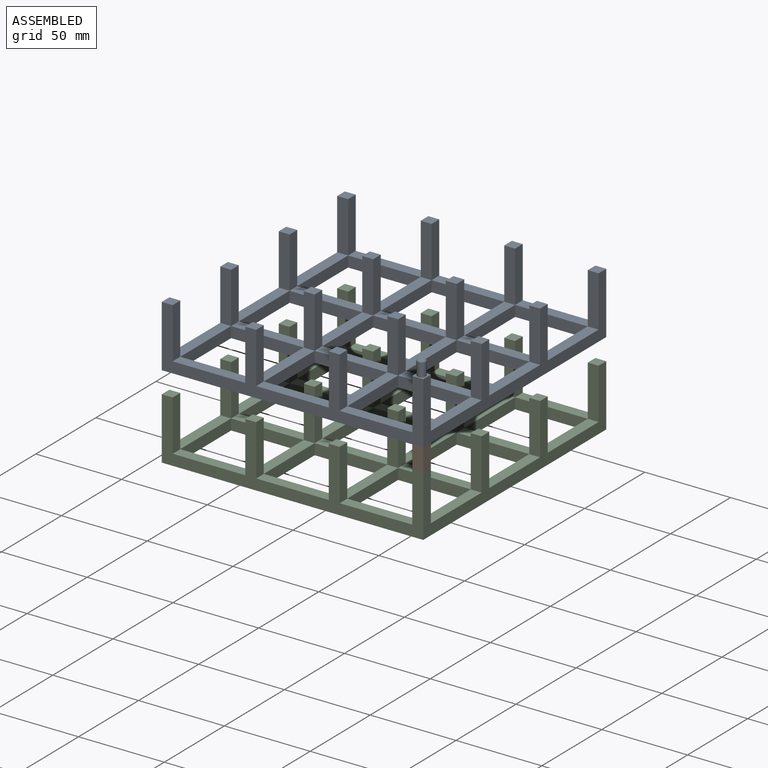
[diagram: assembled view]
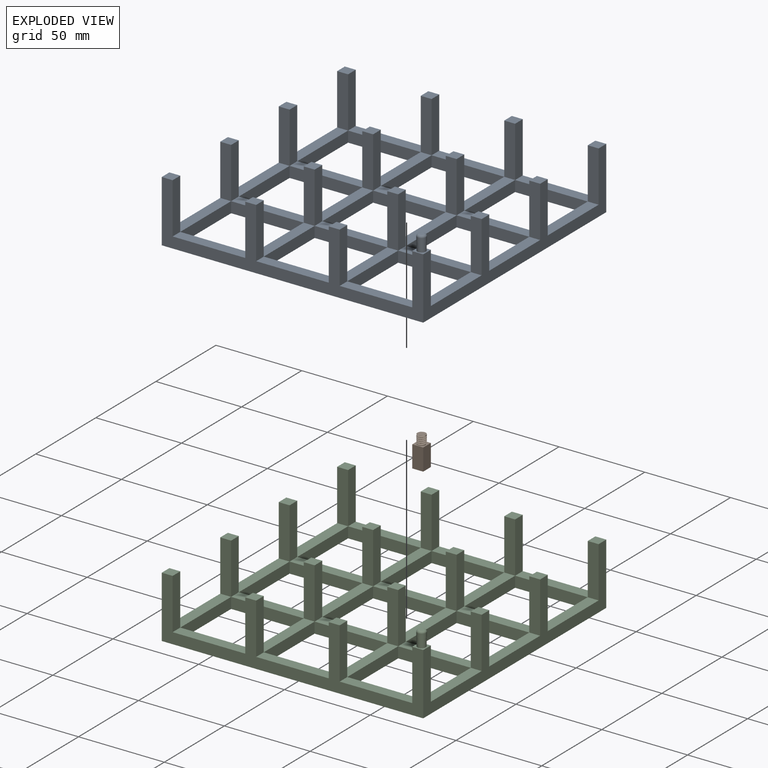
[diagram: exploded view]
GUIDED TOUR — MATED ASSEMBLY (Onshape document 7b0d677c81100ab5d27aa07a, AutoMate assembly 7b0d677c81100ab5d27aa07a_26532926e13315a6cd7b245b_b03c9e7d65e2c97d4fe25ffb_default)

This assembly has 3 components, labeled P0..P2 below (a component is one placed occurrence of a part; the same part can appear more than once), held together by 2 mates. A mate is a constraint between two components; its type names the relative motion it leaves free:
  FASTENED — locks the two components together rigidly (no relative motion),
  REVOLUTE — leaves rotation about the listed axis free (a hinge).
Axis/direction vectors are unit vectors and 'through' points are millimeter coordinates, both in the assembly's world frame.

MATES
  1. REVOLUTE "Revolute 1": P2 <-> P1, axis (0.000, 0.000, -1.000) through (74.07, -41.60, -41.61) mm
  2. FASTENED "Fastened 1": P1 <-> P0, direction (0.000, 0.000, 1.000) through (77.24, -44.78, -28.91) mm

ASSEMBLY ORDER
  1. P1 — the base component [order verified]
  2. P2 [order verified]
  3. P0 [order verified]
Order-tag legend:
  [order verified] — this step's position reverses a verified removal order: the component was checked to insert without passing through the ones already placed.

Of the 3 components, 2 carry the full construction recipe — the FeatureScript program that regenerates the part's solid from scratch; the rest are supplied as boundary geometry only.
Each toured component is shown spotlighted twice — in the assembled view, then in the exploded view, where a leader line traces a displaced component back to its assembled socket (saturated green if recipe-attached, orange if geometry-only; every other component desaturated gray) — followed by its recipe or geometry summary and the mates that hold it.
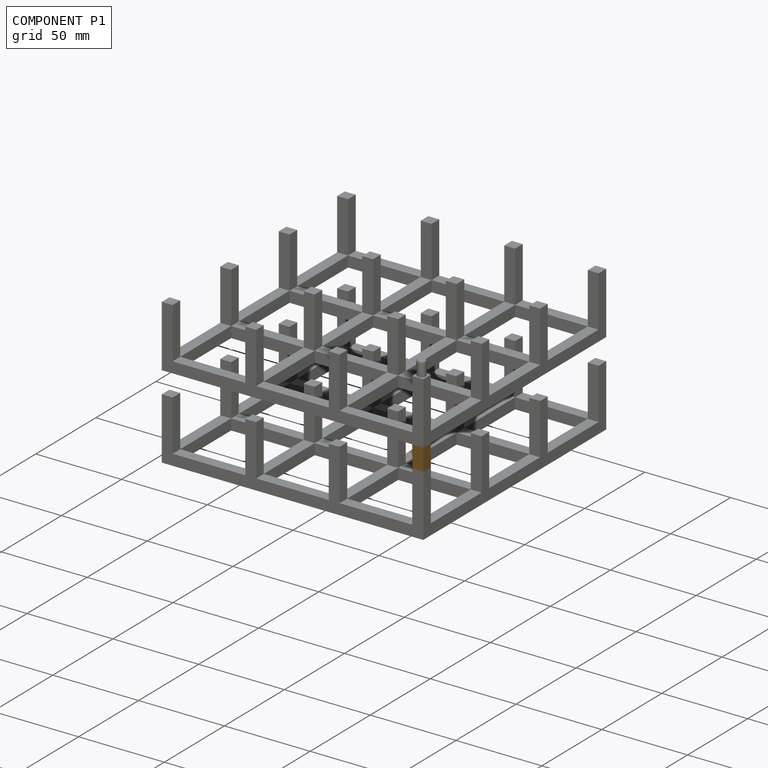
[diagram: component P1 — assembled]
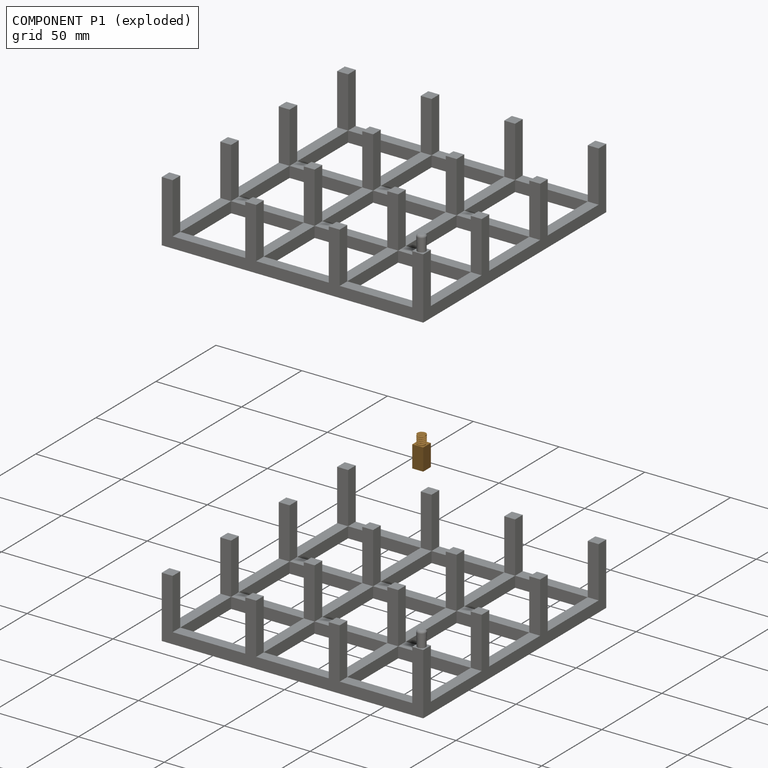
[diagram: component P1 — exploded]
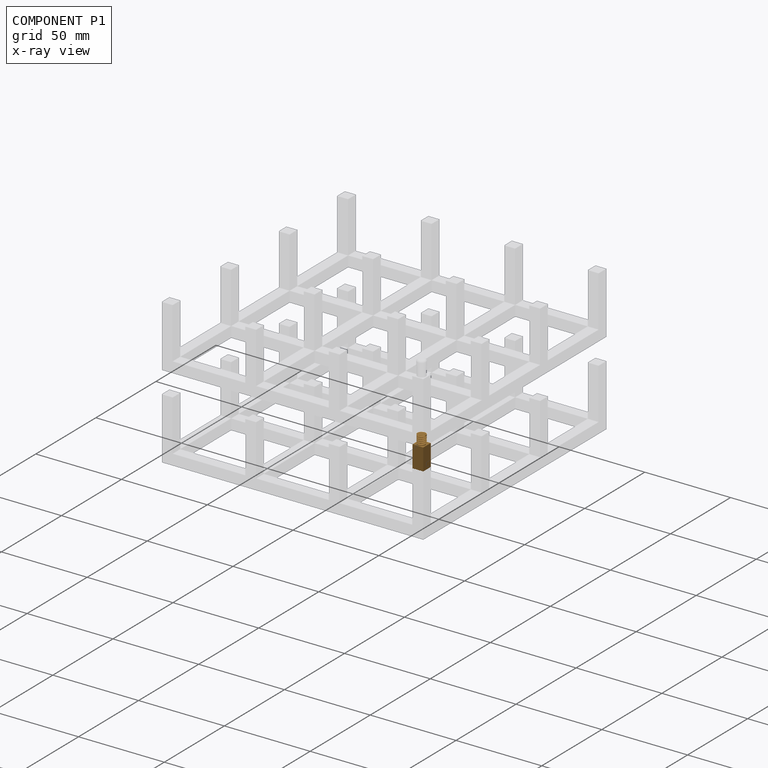
[diagram: component P1 — x-ray view]
COMPONENT P1 — geometry summary (no construction recipe available for this part):
  bounding box: 18.3 x 6.4 x 6.4 mm
  B-rep topology: 1 solid, 16 faces, 64 edges
  volume: 410 mm^3 (56% of its bounding box)
Held by: REVOLUTE mate "Revolute 1" to P2; FASTENED mate "Fastened 1" to P0.
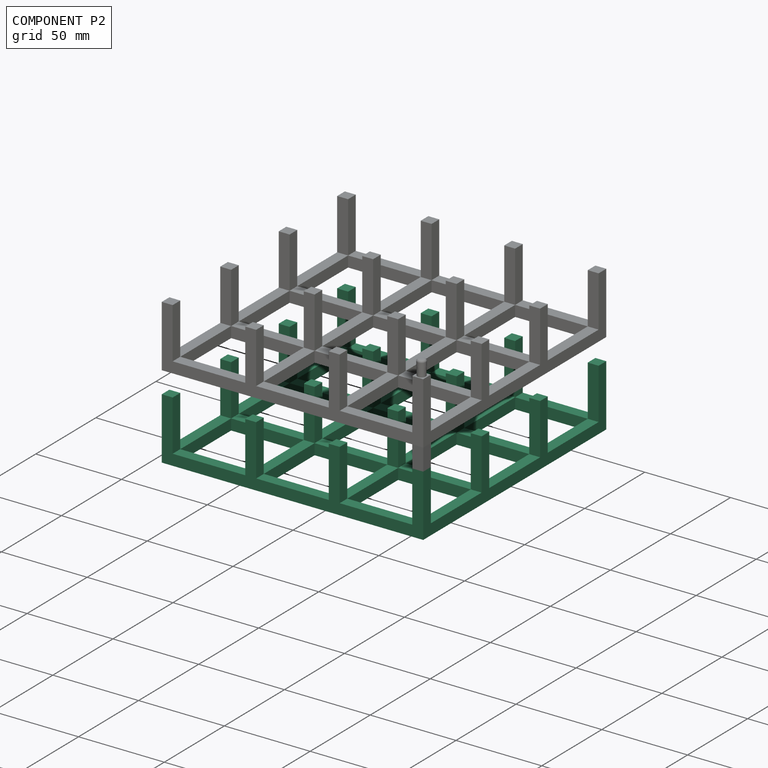
[diagram: component P2 — assembled]
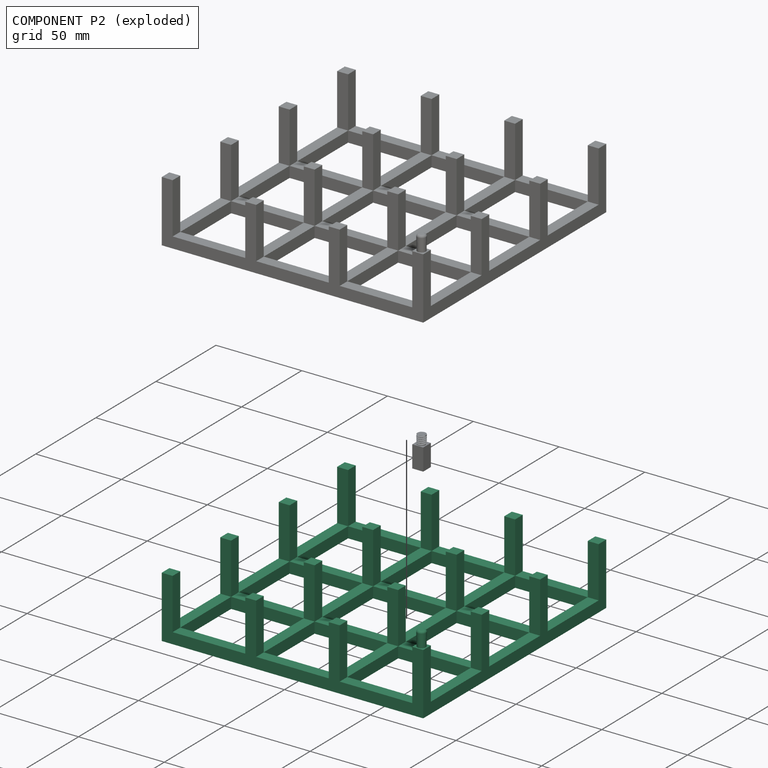
[diagram: component P2 — exploded]
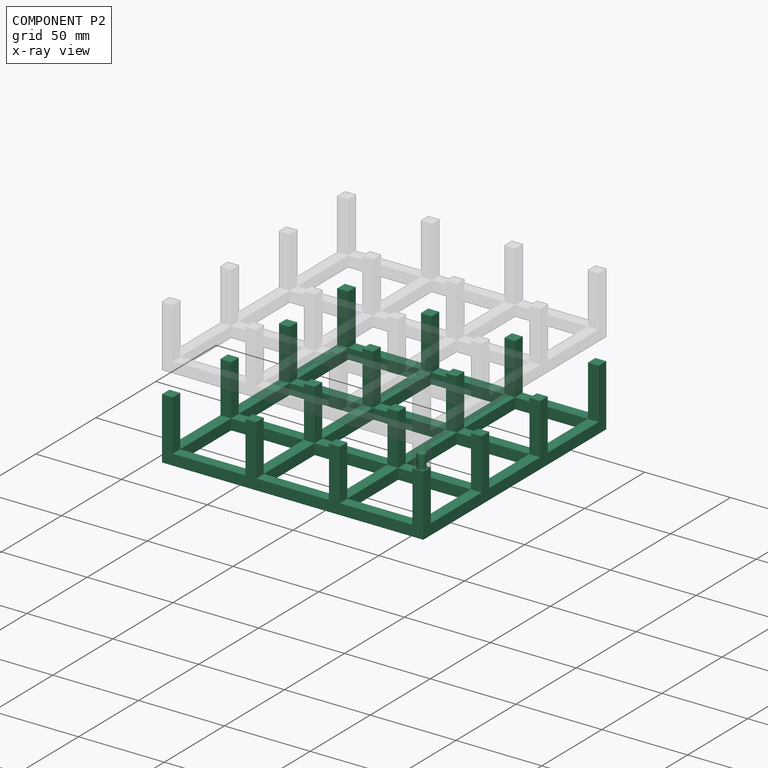
[diagram: component P2 — x-ray view]
COMPONENT P2 — same part as P0 (CADFS 00402662); its construction recipe is shown at P0.
Held by: REVOLUTE mate "Revolute 1" to P1.
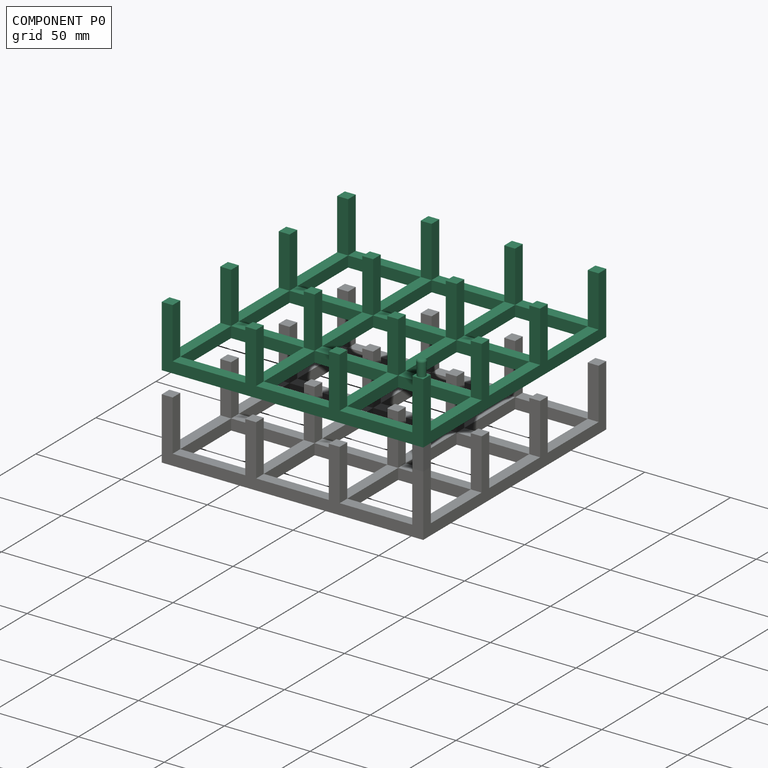
[diagram: component P0 — assembled]
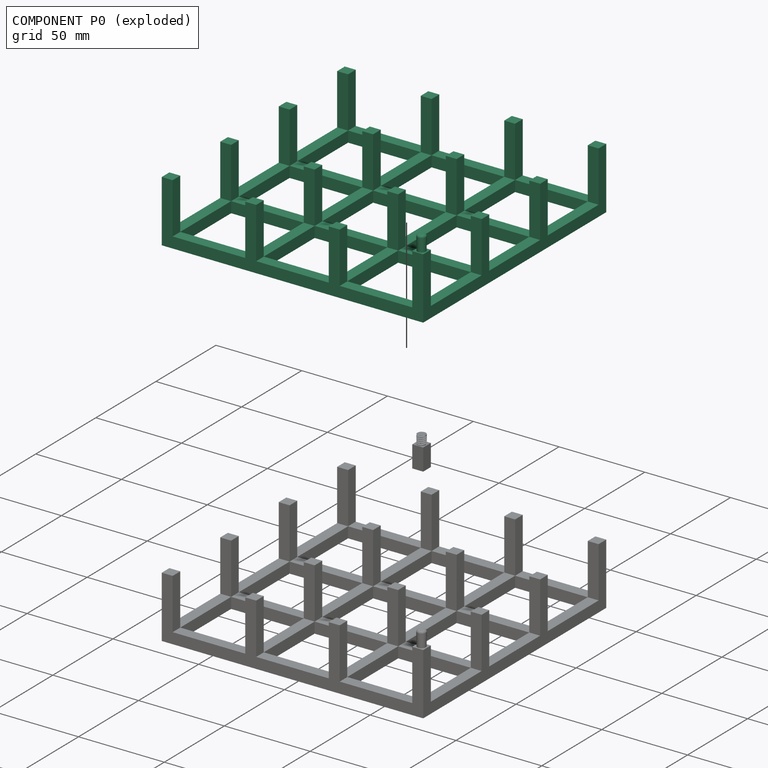
[diagram: component P0 — exploded]
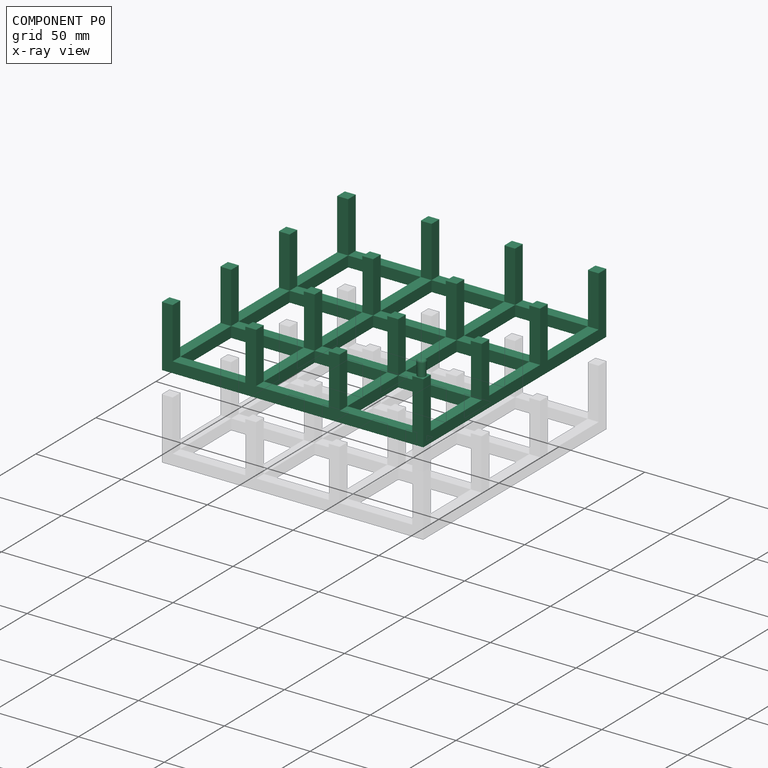
[diagram: component P0 — x-ray view]
COMPONENT P0 — recipe-attached (CADFS 00402662, mesh-verified: the recipe's output STEP matches this component's geometry to below the mesh-comparison resolution (tessellation chordal tolerance ~0.33 mm)).
Held by: FASTENED mate "Fastened 1" to P1.
Construction recipe (FeatureScript — the CAD program that rebuilds this solid; sketch coordinates are in the units given by the * unit suffixes, e.g. mm):

FeatureScript 1511;
import(path : "onshape/std/geometry.fs", version : "1511.0");
import(path : "onshape/std/common.fs", version : "1511.0");
const mm = millimeter;
const VERTEX = EntityType.VERTEX;
const EDGE = EntityType.EDGE;
const FACE = EntityType.FACE;
const BODY = EntityType.BODY;
function v(x, y){return vector(x, y);}
function OD(order){return orderDisambiguation(order);}
function OSD(set){return originalSetDisambiguation(set);}
function TD(topology){return topologyDisambiguation(topology);}
function TDD(query){return trueDependencyDisambiguation(query);}
function sQuery(a, b, c) {return sketchEntityQuery(a, b, c);}

annotation { "Feature Type Name" : "Feature", "Feature Type Description" : "" }
export const myFeature = defineFeature(function(context is Context, id is Id, definition is map)
    precondition{}
    {
        {
            var Q0;
            Q0=qCreatedBy(makeId("Top.planeOp"),FACE);
            var sketch = newSketch(context, id + "F0", { "sketchPlane" : qUnion([Q0])});
            skLineSegment(sketch, "E0.bottom", {"start": v(0, 0) * mm, "end": v(152.4, 0) * mm});
            skLineSegment(sketch, "E0.top", {"start": v(0, 152.4) * mm, "end": v(152.4, 152.4) * mm});
            skLineSegment(sketch, "E0.left", {"start": v(0, 0) * mm, "end": v(0, 152.4) * mm});
            skLineSegment(sketch, "E0.right", {"start": v(152.4, 0) * mm, "end": v(152.4, 152.4) * mm});
            skSolve(sketch);
        }
        {
            var Q0;
            Q0 = qSketchRegion(id + "F0", true);
            extrude(context, id + "F1", {"entities" : qUnion([Q0]), "depth" : 35.98 * mm});
        }
        {
            var Q0;
            Q0=makeQuery(id+"F1.opExtrude","SWEPT_FACE",FACE,{"disambiguationData":[OSD([sQuery(id+"F0.wireOp",EDGE,"E0.bottom")])]});
            var sketch = newSketch(context, id + "F2", { "sketchPlane" : qUnion([Q0])});
            skLineSegment(sketch, "E1.bottom", {"start": v(6.35, 35.98) * mm, "end": v(48.68, 35.98) * mm});
            skLineSegment(sketch, "E1.top", {"start": v(6.35, 6.35) * mm, "end": v(48.68, 6.35) * mm});
            skLineSegment(sketch, "E1.left", {"start": v(6.35, 35.98) * mm, "end": v(6.35, 6.35) * mm});
            skLineSegment(sketch, "E1.right", {"start": v(48.68, 35.98) * mm, "end": v(48.68, 6.35) * mm});
            skLineSegment(sketch, "E2.bottom", {"start": v(55.03, 35.98) * mm, "end": v(97.37, 35.98) * mm});
            skLineSegment(sketch, "E2.top", {"start": v(55.03, 6.35) * mm, "end": v(97.37, 6.35) * mm});
            skLineSegment(sketch, "E2.left", {"start": v(55.03, 35.98) * mm, "end": v(55.03, 6.35) * mm});
            skLineSegment(sketch, "E2.right", {"start": v(97.37, 35.98) * mm, "end": v(97.37, 6.35) * mm});
            skLineSegment(sketch, "E3.bottom", {"start": v(103.72, 35.98) * mm, "end": v(146.05, 35.98) * mm});
            skLineSegment(sketch, "E3.top", {"start": v(103.72, 6.35) * mm, "end": v(146.05, 6.35) * mm});
            skLineSegment(sketch, "E3.left", {"start": v(103.72, 35.98) * mm, "end": v(103.72, 6.35) * mm});
            skLineSegment(sketch, "E3.right", {"start": v(146.05, 35.98) * mm, "end": v(146.05, 6.35) * mm});
            skSolve(sketch);
        }
        {
            var Q0;
            Q0 = qSketchRegion(id + "F2", true);
            extrude(context, id + "F3", {"entities" : qUnion([Q0]), "operationType" : NewBodyOperationType.REMOVE, "oppositeDirection" : true, "depth" : 396.24 * mm});
        }
        {
            var Q0;
            Q0=makeQuery(id+"F1.opExtrude","SWEPT_FACE",FACE,{"disambiguationData":[OSD([sQuery(id+"F0.wireOp",EDGE,"E0.right")])]});
            var sketch = newSketch(context, id + "F4", { "sketchPlane" : qUnion([Q0])});
            skLineSegment(sketch, "E4.bottom", {"start": v(6.35, 35.98) * mm, "end": v(48.68, 35.98) * mm});
            skLineSegment(sketch, "E4.top", {"start": v(6.35, 6.35) * mm, "end": v(48.68, 6.35) * mm});
            skLineSegment(sketch, "E4.left", {"start": v(6.35, 35.98) * mm, "end": v(6.35, 6.35) * mm});
            skLineSegment(sketch, "E4.right", {"start": v(48.68, 35.98) * mm, "end": v(48.68, 6.35) * mm});
            skLineSegment(sketch, "E5.bottom", {"start": v(55.03, 35.98) * mm, "end": v(97.37, 35.98) * mm});
            skLineSegment(sketch, "E5.top", {"start": v(55.03, 6.35) * mm, "end": v(97.37, 6.35) * mm});
            skLineSegment(sketch, "E5.left", {"start": v(55.03, 35.98) * mm, "end": v(55.03, 6.35) * mm});
            skLineSegment(sketch, "E5.right", {"start": v(97.37, 35.98) * mm, "end": v(97.37, 6.35) * mm});
            skLineSegment(sketch, "E6.bottom", {"start": v(103.72, 35.98) * mm, "end": v(146.05, 35.98) * mm});
            skLineSegment(sketch, "E6.top", {"start": v(103.72, 6.35) * mm, "end": v(146.05, 6.35) * mm});
            skLineSegment(sketch, "E6.left", {"start": v(103.72, 35.98) * mm, "end": v(103.72, 6.35) * mm});
            skLineSegment(sketch, "E6.right", {"start": v(146.05, 35.98) * mm, "end": v(146.05, 6.35) * mm});
            skSolve(sketch);
        }
        {
            var Q0;
            Q0 = qSketchRegion(id + "F4", true);
            extrude(context, id + "F5", {"entities" : qUnion([Q0]), "operationType" : NewBodyOperationType.REMOVE, "oppositeDirection" : true, "depth" : 206.25 * mm});
        }
        {
            var Q0;
            Q0=makeQuery(id+"F5.boolean.opBoolean","MERGE",FACE,{"derivedFrom":[makeQuery(id+"F3.boolean.opBoolean","COPY",FACE,{"derivedFrom":makeQuery(id+"F3.opExtrude","SWEPT_FACE",FACE,{"disambiguationData":[OSD([sQuery(id+"F2.wireOp",EDGE,"E1.top")])]})}),makeQuery(id+"F3.boolean.opBoolean","COPY",FACE,{"derivedFrom":makeQuery(id+"F3.opExtrude","SWEPT_FACE",FACE,{"disambiguationData":[OSD([sQuery(id+"F2.wireOp",EDGE,"E2.top")])]})}),makeQuery(id+"F3.boolean.opBoolean","COPY",FACE,{"derivedFrom":makeQuery(id+"F3.opExtrude","SWEPT_FACE",FACE,{"disambiguationData":[OSD([sQuery(id+"F2.wireOp",EDGE,"E3.top")])]})}),makeQuery(id+"F5.opExtrude","SWEPT_FACE",FACE,{"disambiguationData":[OSD([sQuery(id+"F4.wireOp",EDGE,"E4.top")])]}),makeQuery(id+"F5.opExtrude","SWEPT_FACE",FACE,{"disambiguationData":[OSD([sQuery(id+"F4.wireOp",EDGE,"E5.top")])]}),makeQuery(id+"F5.opExtrude","SWEPT_FACE",FACE,{"disambiguationData":[OSD([sQuery(id+"F4.wireOp",EDGE,"E6.top")])]})]});
            var sketch = newSketch(context, id + "F6", { "sketchPlane" : qUnion([Q0])});
            skLineSegment(sketch, "E7.bottom", {"start": v(6.35, 146.05) * mm, "end": v(48.68, 146.05) * mm});
            skLineSegment(sketch, "E7.top", {"start": v(6.35, 103.72) * mm, "end": v(48.68, 103.72) * mm});
            skLineSegment(sketch, "E7.left", {"start": v(6.35, 146.05) * mm, "end": v(6.35, 103.72) * mm});
            skLineSegment(sketch, "E7.right", {"start": v(48.68, 146.05) * mm, "end": v(48.68, 103.72) * mm});
            skLineSegment(sketch, "E8.bottom", {"start": v(55.03, 146.05) * mm, "end": v(97.37, 146.05) * mm});
            skLineSegment(sketch, "E8.top", {"start": v(55.03, 103.72) * mm, "end": v(97.37, 103.72) * mm});
            skLineSegment(sketch, "E8.left", {"start": v(55.03, 146.05) * mm, "end": v(55.03, 103.72) * mm});
            skLineSegment(sketch, "E8.right", {"start": v(97.37, 146.05) * mm, "end": v(97.37, 103.72) * mm});
            skLineSegment(sketch, "E9.bottom", {"start": v(103.72, 146.05) * mm, "end": v(146.05, 146.05) * mm});
            skLineSegment(sketch, "E9.top", {"start": v(103.72, 103.72) * mm, "end": v(146.05, 103.72) * mm});
            skLineSegment(sketch, "E9.left", {"start": v(103.72, 146.05) * mm, "end": v(103.72, 103.72) * mm});
            skLineSegment(sketch, "E9.right", {"start": v(146.05, 146.05) * mm, "end": v(146.05, 103.72) * mm});
            skLineSegment(sketch, "E10.bottom", {"start": v(6.35, 97.37) * mm, "end": v(48.68, 97.37) * mm});
            skLineSegment(sketch, "E10.top", {"start": v(6.35, 55.03) * mm, "end": v(48.68, 55.03) * mm});
            skLineSegment(sketch, "E10.left", {"start": v(6.35, 97.37) * mm, "end": v(6.35, 55.03) * mm});
            skLineSegment(sketch, "E10.right", {"start": v(48.68, 97.37) * mm, "end": v(48.68, 55.03) * mm});
            skLineSegment(sketch, "E11.bottom", {"start": v(97.37, 97.37) * mm, "end": v(55.03, 97.37) * mm});
            skLineSegment(sketch, "E11.top", {"start": v(97.37, 55.03) * mm, "end": v(55.03, 55.03) * mm});
            skLineSegment(sketch, "E11.left", {"start": v(97.37, 97.37) * mm, "end": v(97.37, 55.03) * mm});
            skLineSegment(sketch, "E11.right", {"start": v(55.03, 97.37) * mm, "end": v(55.03, 55.03) * mm});
            skLineSegment(sketch, "E12.bottom", {"start": v(103.72, 97.37) * mm, "end": v(146.05, 97.37) * mm});
            skLineSegment(sketch, "E12.top", {"start": v(103.72, 55.03) * mm, "end": v(146.05, 55.03) * mm});
            skLineSegment(sketch, "E12.left", {"start": v(103.72, 97.37) * mm, "end": v(103.72, 55.03) * mm});
            skLineSegment(sketch, "E12.right", {"start": v(146.05, 97.37) * mm, "end": v(146.05, 55.03) * mm});
            skLineSegment(sketch, "E13.bottom", {"start": v(6.35, 48.68) * mm, "end": v(48.68, 48.68) * mm});
            skLineSegment(sketch, "E13.top", {"start": v(6.35, 6.35) * mm, "end": v(48.68, 6.35) * mm});
            skLineSegment(sketch, "E13.left", {"start": v(6.35, 48.68) * mm, "end": v(6.35, 6.35) * mm});
            skLineSegment(sketch, "E13.right", {"start": v(48.68, 48.68) * mm, "end": v(48.68, 6.35) * mm});
            skLineSegment(sketch, "E14.bottom", {"start": v(55.03, 48.68) * mm, "end": v(97.37, 48.68) * mm});
            skLineSegment(sketch, "E14.top", {"start": v(55.03, 6.35) * mm, "end": v(97.37, 6.35) * mm});
            skLineSegment(sketch, "E14.left", {"start": v(55.03, 48.68) * mm, "end": v(55.03, 6.35) * mm});
            skLineSegment(sketch, "E14.right", {"start": v(97.37, 48.68) * mm, "end": v(97.37, 6.35) * mm});
            skLineSegment(sketch, "E15.bottom", {"start": v(103.72, 48.68) * mm, "end": v(146.05, 48.68) * mm});
            skLineSegment(sketch, "E15.top", {"start": v(103.72, 6.35) * mm, "end": v(146.05, 6.35) * mm});
            skLineSegment(sketch, "E15.left", {"start": v(103.72, 48.68) * mm, "end": v(103.72, 6.35) * mm});
            skLineSegment(sketch, "E15.right", {"start": v(146.05, 48.68) * mm, "end": v(146.05, 6.35) * mm});
            skSolve(sketch);
        }
        {
            var Q0;
            Q0 = qSketchRegion(id + "F6", true);
            extrude(context, id + "F7", {"entities" : qUnion([Q0]), "operationType" : NewBodyOperationType.REMOVE, "oppositeDirection" : true, "depth" : 25.4 * mm});
        }
        {
            var Q0;
            {var subQ0=sQuery(id+"F0.wireOp",EDGE,"E0.bottom");var subQ1=makeQuery(id+"F1.opExtrude","SWEPT_FACE",FACE,{"disambiguationData":[OSD([subQ0])]});var subQ2=sQuery(id+"F0.wireOp",EDGE,"E0.right");var subQ3=makeQuery(id+"F1.opExtrude","SWEPT_FACE",FACE,{"disambiguationData":[OSD([subQ2])]});var subQ5=sQuery(id+"F0.wireOp",EDGE,"E0.top");Q0=makeQuery(id+"F5.boolean.opBoolean","SPLIT",FACE,{"disambiguationData":[TD([subQ1])],"derivedFrom":makeQuery(id+"F3.boolean.opBoolean","SPLIT",FACE,{"disambiguationData":[TD([subQ3])],"derivedFrom":makeQuery(id+"F1.opExtrude","CAP_FACE",FACE,{"disambiguationData":[OSD([subQ0,subQ5,sQuery(id+"F0.wireOp",EDGE,"E0.left"),subQ2])],"isStart":false})})});}
            var sketch = newSketch(context, id + "F8", { "sketchPlane" : qUnion([Q0])});
            skCircle(sketch, "E16", {"center": v(149.22, 3.18) * mm, "radius": 2.41 * mm});
            skPoint(sketch, "E16.centerSnap0", {"position": v(152.4, 3.17) * mm});
            skSolve(sketch);
        }
        {
            var Q0;
            Q0 = qSketchRegion(id + "F8", true);
            extrude(context, id + "F9", {"entities" : qUnion([Q0]), "operationType" : NewBodyOperationType.ADD, "depth" : 5.08 * mm});
        }
        {
            var Q0;
            Q0=makeQuery(id+"F9.opExtrude","CAP_FACE",FACE,{"disambiguationData":[OSD([sQuery(id+"F8.wireOp",EDGE,"E16")])],"isStart":false});
            var sketch = newSketch(context, id + "F10", { "sketchPlane" : qUnion([Q0])});
            skCircle(sketch, "E17", {"center": v(149.22, 3.18) * mm, "radius": 2.54 * mm});
            skSolve(sketch);
        }
        {
            var Q0;
            Q0 = qSketchRegion(id + "F10", true);
            extrude(context, id + "F11", {"entities" : qUnion([Q0]), "operationType" : NewBodyOperationType.ADD, "depth" : 3.8 * mm});
        }
        {
            var Q0;
            Q0=makeQuery(id+"F11.opExtrude","CAP_EDGE",EDGE,{"disambiguationData":[OSD([sQuery(id+"F10.wireOp",EDGE,"E17")])],"isStart":false});
            fillet(context, id + "F12", {"entities" : qUnion([Q0]), "radius" : 1.27 * mm, "tangentPropagation" : true, "allowEdgeOverflow" : false});
        }
    });
PROVENANCE & LICENSES
Assembly (occurrences, transforms, mates, per-part STEP geometry): AutoMate dataset, Zenodo record 7776208, CC0.
Construction recipes: CADFS (HuggingFace VladPyatov/CADFS, CC-BY-4.0, layered over the ABC dataset), FeatureScript reconstruction programs keyed by ABC model id.
Join: ABC meta listings map ABC model id -> Onshape documentId; within a shared document, parts are matched by geometric signature (bounding-box dims + volume at 0.1% relative tolerance, exact B-rep face/solid counts).
Verification: 2 of this assembly's 3 components carry a recipe attachment, and every attachment is mesh-verified: the CADFS STEP and the AutoMate member STEP were compared as meshes in their shared local frame (symmetric sampled-point-to-mesh distance); worst across the 2 attachments: below the mesh-comparison resolution (tessellation chordal tolerance ~0.33 mm) on a 220 mm part.
Renders: orthographic iso camera (az 35 / el 25); the floor grid conveys scale (grid pitch printed in each image; no ruler). In the exploded view each component is displaced by its stored offset vector: the offsets alone carry the explosion direction (mate normal/axis signs are not orientation cues and do not encode it), and separation distances are assigned per mate-chain, not proportionally to assembly-order depth.
